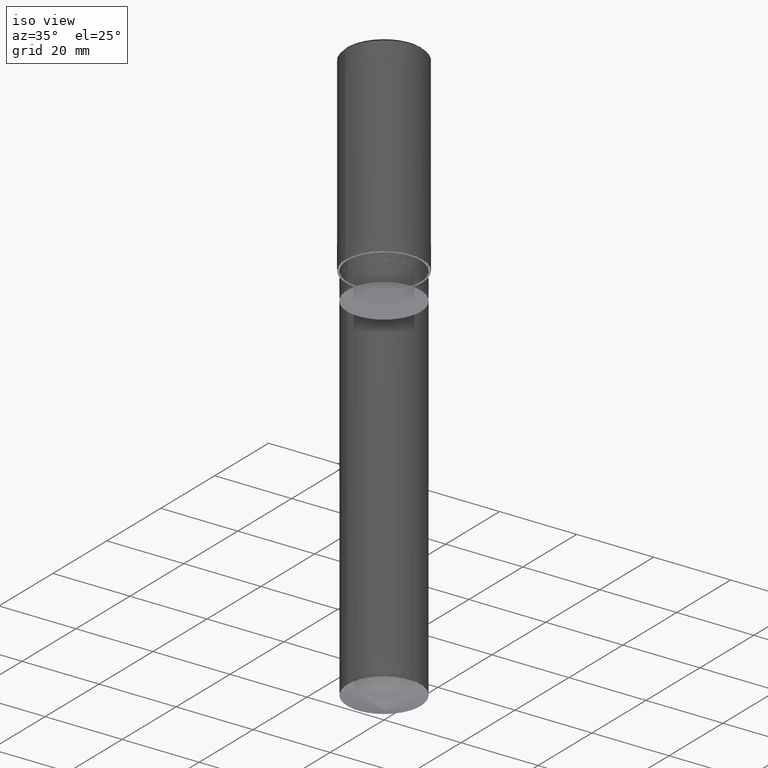
[diagram: clean part render]
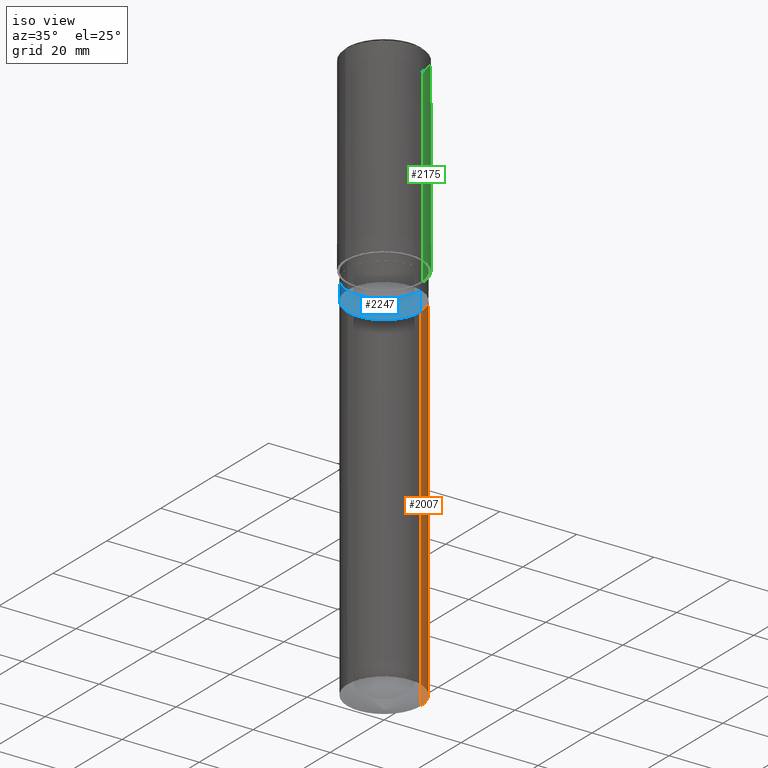
[diagram: same view with three faces highlighted in distinct colors, each labeled with its STEP entity id]
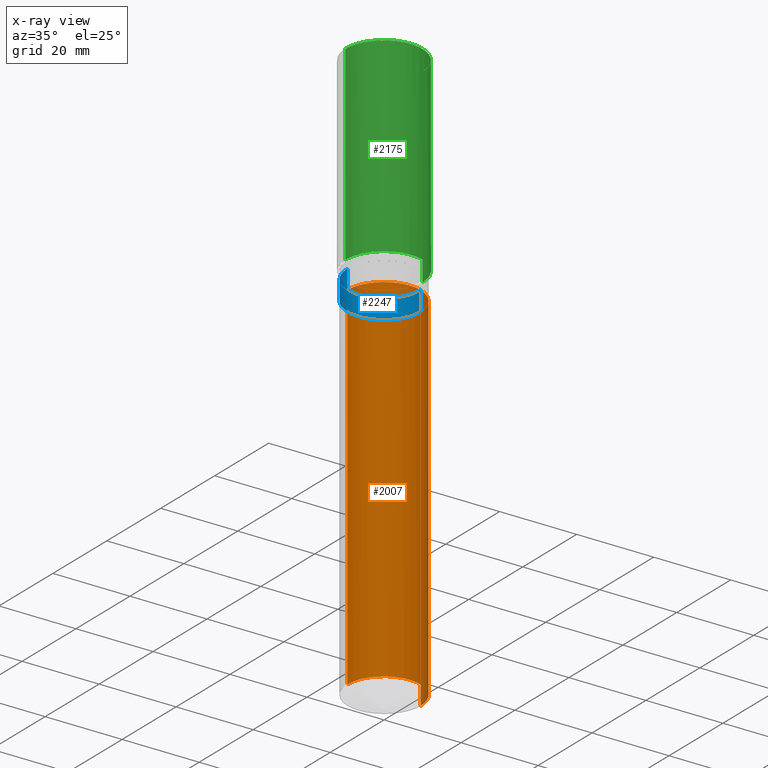
[diagram: x-ray of the same camera — body ghosted, the three highlighted faces saturated]
A machine part, iso view with three faces highlighted in distinct colors.
The next image is the same camera in x-ray (body ghosted, the three faces saturated) — at least one of them is partly hidden behind the body in this view.
Their STEP definitions:

[orange] entity #2007 — the highlighted face is a freeform B-spline surface patch.
#1909=CARTESIAN_POINT('',(9.5,0.0,-99.542282774471));
#1910=CARTESIAN_POINT('',(9.5,9.5,-99.542282774471));
#1911=CARTESIAN_POINT('',(0.0,9.5,-99.542282774471));
#1912=CARTESIAN_POINT('',(-9.5,9.5,-99.542282774471));
#1913=CARTESIAN_POINT('',(-9.5,0.0,-99.542282774471));
#1914=CARTESIAN_POINT('',(9.5,0.0,-7.0));
#1915=CARTESIAN_POINT('',(9.5,9.5,-7.0));
#1916=CARTESIAN_POINT('',(0.0,9.5,-7.0));
#1917=CARTESIAN_POINT('',(-9.5,9.5,-7.0));
#1918=CARTESIAN_POINT('',(-9.5,0.0,-7.0));
#1988=(
BOUNDED_SURFACE()
B_SPLINE_SURFACE(1,2,(
(#1909,#1910,#1911,#1912,#1913),
(#1914,#1915,#1916,#1917,#1918)
), .UNSPECIFIED.,.F.,.F.,.F.)
B_SPLINE_SURFACE_WITH_KNOTS((2,2),(3,2,3),(
0.0,1.0),(
0.0,0.5,1.0), .UNSPECIFIED.)
GEOMETRIC_REPRESENTATION_ITEM()
RATIONAL_B_SPLINE_SURFACE(((1.0,0.707106781187,1.0,0.707106781187,1.0),
(1.0,0.707106781187,1.0,0.707106781187,1.0)
))
REPRESENTATION_ITEM('')
SURFACE()
);
#1989=(
BOUNDED_CURVE()
B_SPLINE_CURVE(2,(#1913,#1912,#1911,#1910,#1909),.UNSPECIFIED.,.F.,.F.)
B_SPLINE_CURVE_WITH_KNOTS((3,2,3),
(0.0,0.5,1.0),.UNSPECIFIED.)
CURVE()
GEOMETRIC_REPRESENTATION_ITEM()
RATIONAL_B_SPLINE_CURVE((1.0,0.707106781187,1.0,0.707106781187,1.0))
REPRESENTATION_ITEM('')
);
#1990=(
BOUNDED_CURVE()
B_SPLINE_CURVE(1,(#1909,#1914),.UNSPECIFIED.,.F.,.F.)
B_SPLINE_CURVE_WITH_KNOTS((2,2),
(0.0,1.0),.UNSPECIFIED.)
CURVE()
GEOMETRIC_REPRESENTATION_ITEM()
RATIONAL_B_SPLINE_CURVE((1.0,1.0))
REPRESENTATION_ITEM('')
);
#1991=(
BOUNDED_CURVE()
B_SPLINE_CURVE(2,(#1914,#1915,#1916,#1917,#1918),.UNSPECIFIED.,.F.,.F.)
B_SPLINE_CURVE_WITH_KNOTS((3,2,3),
(0.0,0.5,1.0),.UNSPECIFIED.)
CURVE()
GEOMETRIC_REPRESENTATION_ITEM()
RATIONAL_B_SPLINE_CURVE((1.0,0.707106781187,1.0,0.707106781187,1.0))
REPRESENTATION_ITEM('')
);
#1992=(
BOUNDED_CURVE()
B_SPLINE_CURVE(1,(#1918,#1913),.UNSPECIFIED.,.F.,.F.)
B_SPLINE_CURVE_WITH_KNOTS((2,2),
(0.0,1.0),.UNSPECIFIED.)
CURVE()
GEOMETRIC_REPRESENTATION_ITEM()
RATIONAL_B_SPLINE_CURVE((1.0,1.0))
REPRESENTATION_ITEM('')
);
#1993=VERTEX_POINT('',#1909);
#1994=VERTEX_POINT('',#1913);
#1995=VERTEX_POINT('',#1914);
#1996=VERTEX_POINT('',#1918);
#1997=EDGE_CURVE('',#1994,#1993,#1989,.T.);
#1998=EDGE_CURVE('',#1993,#1995,#1990,.T.);
#1999=EDGE_CURVE('',#1995,#1996,#1991,.T.);
#2000=EDGE_CURVE('',#1996,#1994,#1992,.T.);
#2001=ORIENTED_EDGE('',*,*,#1997,.T.);
#2002=ORIENTED_EDGE('',*,*,#1998,.T.);
#2003=ORIENTED_EDGE('',*,*,#1999,.T.);
#2004=ORIENTED_EDGE('',*,*,#2000,.T.);
#2005=EDGE_LOOP('',(#2001,#2002,#2003,#2004));
#2006=FACE_OUTER_BOUND('',#2005,.T.);
#2007=ADVANCED_FACE('',(#2006),#1988,.T.);

[blue] entity #2247 — the highlighted face is a freeform B-spline surface patch.
#1914=CARTESIAN_POINT('',(9.5,0.0,-7.0));
#1918=CARTESIAN_POINT('',(-9.5,0.0,-7.0));
#1923=CARTESIAN_POINT('',(-9.5,-9.5,-7.0));
#1924=CARTESIAN_POINT('',(0.0,-9.5,-7.0));
#1925=CARTESIAN_POINT('',(9.5,-9.5,-7.0));
#1926=CARTESIAN_POINT('',(9.5,0.0,-2.0));
#1930=CARTESIAN_POINT('',(-9.5,0.0,-2.0));
#1952=CARTESIAN_POINT('',(-9.5,-9.5,-2.0));
#1953=CARTESIAN_POINT('',(0.0,-9.5,-2.0));
#1954=CARTESIAN_POINT('',(9.5,-9.5,-2.0));
#2228=(
BOUNDED_SURFACE()
B_SPLINE_SURFACE(1,2,(
(#1918,#1923,#1924,#1925,#1914),
(#1930,#1952,#1953,#1954,#1926)
), .UNSPECIFIED.,.F.,.F.,.F.)
B_SPLINE_SURFACE_WITH_KNOTS((2,2),(3,2,3),(
0.0,1.0),(
0.0,0.5,1.0), .UNSPECIFIED.)
GEOMETRIC_REPRESENTATION_ITEM()
RATIONAL_B_SPLINE_SURFACE(((1.0,0.707106781187,1.0,0.707106781187,1.0),
(1.0,0.707106781187,1.0,0.707106781187,1.0)
))
REPRESENTATION_ITEM('')
SURFACE()
);
#2229=(
BOUNDED_CURVE()
B_SPLINE_CURVE(2,(#1914,#1925,#1924,#1923,#1918),.UNSPECIFIED.,.F.,.F.)
B_SPLINE_CURVE_WITH_KNOTS((3,2,3),
(0.0,0.5,1.0),.UNSPECIFIED.)
CURVE()
GEOMETRIC_REPRESENTATION_ITEM()
RATIONAL_B_SPLINE_CURVE((1.0,0.707106781187,1.0,0.707106781187,1.0))
REPRESENTATION_ITEM('')
);
#2230=(
BOUNDED_CURVE()
B_SPLINE_CURVE(1,(#1918,#1930),.UNSPECIFIED.,.F.,.F.)
B_SPLINE_CURVE_WITH_KNOTS((2,2),
(0.0,1.0),.UNSPECIFIED.)
CURVE()
GEOMETRIC_REPRESENTATION_ITEM()
RATIONAL_B_SPLINE_CURVE((1.0,1.0))
REPRESENTATION_ITEM('')
);
#2231=(
BOUNDED_CURVE()
B_SPLINE_CURVE(2,(#1930,#1952,#1953,#1954,#1926),.UNSPECIFIED.,.F.,.F.)
B_SPLINE_CURVE_WITH_KNOTS((3,2,3),
(0.0,0.5,1.0),.UNSPECIFIED.)
CURVE()
GEOMETRIC_REPRESENTATION_ITEM()
RATIONAL_B_SPLINE_CURVE((1.0,0.707106781187,1.0,0.707106781187,1.0))
REPRESENTATION_ITEM('')
);
#2232=(
BOUNDED_CURVE()
B_SPLINE_CURVE(1,(#1926,#1914),.UNSPECIFIED.,.F.,.F.)
B_SPLINE_CURVE_WITH_KNOTS((2,2),
(0.0,1.0),.UNSPECIFIED.)
CURVE()
GEOMETRIC_REPRESENTATION_ITEM()
RATIONAL_B_SPLINE_CURVE((1.0,1.0))
REPRESENTATION_ITEM('')
);
#2233=VERTEX_POINT('',#1914);
#2234=VERTEX_POINT('',#1918);
#2235=VERTEX_POINT('',#1926);
#2236=VERTEX_POINT('',#1930);
#2237=EDGE_CURVE('',#2233,#2234,#2229,.T.);
#2238=EDGE_CURVE('',#2234,#2236,#2230,.T.);
#2239=EDGE_CURVE('',#2236,#2235,#2231,.T.);
#2240=EDGE_CURVE('',#2235,#2233,#2232,.T.);
#2241=ORIENTED_EDGE('',*,*,#2237,.T.);
#2242=ORIENTED_EDGE('',*,*,#2238,.T.);
#2243=ORIENTED_EDGE('',*,*,#2239,.T.);
#2244=ORIENTED_EDGE('',*,*,#2240,.T.);
#2245=EDGE_LOOP('',(#2241,#2242,#2243,#2244));
#2246=FACE_OUTER_BOUND('',#2245,.T.);
#2247=ADVANCED_FACE('',(#2246),#2228,.T.);

[green] entity #2175 — the highlighted face is a freeform B-spline surface patch.
#1936=CARTESIAN_POINT('',(10.0,0.0,0.0));
#1937=CARTESIAN_POINT('',(10.0,10.0,0.0));
#1938=CARTESIAN_POINT('',(0.0,10.0,0.0));
#1939=CARTESIAN_POINT('',(-10.0,10.0,0.0));
#1940=CARTESIAN_POINT('',(-10.0,0.0,0.0));
#1941=CARTESIAN_POINT('',(10.0,0.0,49.5));
#1942=CARTESIAN_POINT('',(10.0,10.0,49.5));
#1943=CARTESIAN_POINT('',(0.0,10.0,49.5));
#1944=CARTESIAN_POINT('',(-10.0,10.0,49.5));
#1945=CARTESIAN_POINT('',(-10.0,0.0,49.5));
#2156=(
BOUNDED_SURFACE()
B_SPLINE_SURFACE(1,2,(
(#1936,#1937,#1938,#1939,#1940),
(#1941,#1942,#1943,#1944,#1945)
), .UNSPECIFIED.,.F.,.F.,.F.)
B_SPLINE_SURFACE_WITH_KNOTS((2,2),(3,2,3),(
0.0,1.0),(
0.0,0.5,1.0), .UNSPECIFIED.)
GEOMETRIC_REPRESENTATION_ITEM()
RATIONAL_B_SPLINE_SURFACE(((1.0,0.707106781187,1.0,0.707106781187,1.0),
(1.0,0.707106781187,1.0,0.707106781187,1.0)
))
REPRESENTATION_ITEM('')
SURFACE()
);
#2157=(
BOUNDED_CURVE()
B_SPLINE_CURVE(2,(#1940,#1939,#1938,#1937,#1936),.UNSPECIFIED.,.F.,.F.)
B_SPLINE_CURVE_WITH_KNOTS((3,2,3),
(0.0,0.5,1.0),.UNSPECIFIED.)
CURVE()
GEOMETRIC_REPRESENTATION_ITEM()
RATIONAL_B_SPLINE_CURVE((1.0,0.707106781187,1.0,0.707106781187,1.0))
REPRESENTATION_ITEM('')
);
#2158=(
BOUNDED_CURVE()
B_SPLINE_CURVE(1,(#1936,#1941),.UNSPECIFIED.,.F.,.F.)
B_SPLINE_CURVE_WITH_KNOTS((2,2),
(0.0,1.0),.UNSPECIFIED.)
CURVE()
GEOMETRIC_REPRESENTATION_ITEM()
RATIONAL_B_SPLINE_CURVE((1.0,1.0))
REPRESENTATION_ITEM('')
);
#2159=(
BOUNDED_CURVE()
B_SPLINE_CURVE(2,(#1941,#1942,#1943,#1944,#1945),.UNSPECIFIED.,.F.,.F.)
B_SPLINE_CURVE_WITH_KNOTS((3,2,3),
(0.0,0.5,1.0),.UNSPECIFIED.)
CURVE()
GEOMETRIC_REPRESENTATION_ITEM()
RATIONAL_B_SPLINE_CURVE((1.0,0.707106781187,1.0,0.707106781187,1.0))
REPRESENTATION_ITEM('')
);
#2160=(
BOUNDED_CURVE()
B_SPLINE_CURVE(1,(#1945,#1940),.UNSPECIFIED.,.F.,.F.)
B_SPLINE_CURVE_WITH_KNOTS((2,2),
(0.0,1.0),.UNSPECIFIED.)
CURVE()
GEOMETRIC_REPRESENTATION_ITEM()
RATIONAL_B_SPLINE_CURVE((1.0,1.0))
REPRESENTATION_ITEM('')
);
#2161=VERTEX_POINT('',#1936);
#2162=VERTEX_POINT('',#1940);
#2163=VERTEX_POINT('',#1941);
#2164=VERTEX_POINT('',#1945);
#2165=EDGE_CURVE('',#2162,#2161,#2157,.T.);
#2166=EDGE_CURVE('',#2161,#2163,#2158,.T.);
#2167=EDGE_CURVE('',#2163,#2164,#2159,.T.);
#2168=EDGE_CURVE('',#2164,#2162,#2160,.T.);
#2169=ORIENTED_EDGE('',*,*,#2165,.T.);
#2170=ORIENTED_EDGE('',*,*,#2166,.T.);
#2171=ORIENTED_EDGE('',*,*,#2167,.T.);
#2172=ORIENTED_EDGE('',*,*,#2168,.T.);
#2173=EDGE_LOOP('',(#2169,#2170,#2171,#2172));
#2174=FACE_OUTER_BOUND('',#2173,.T.);
#2175=ADVANCED_FACE('',(#2174),#2156,.T.);